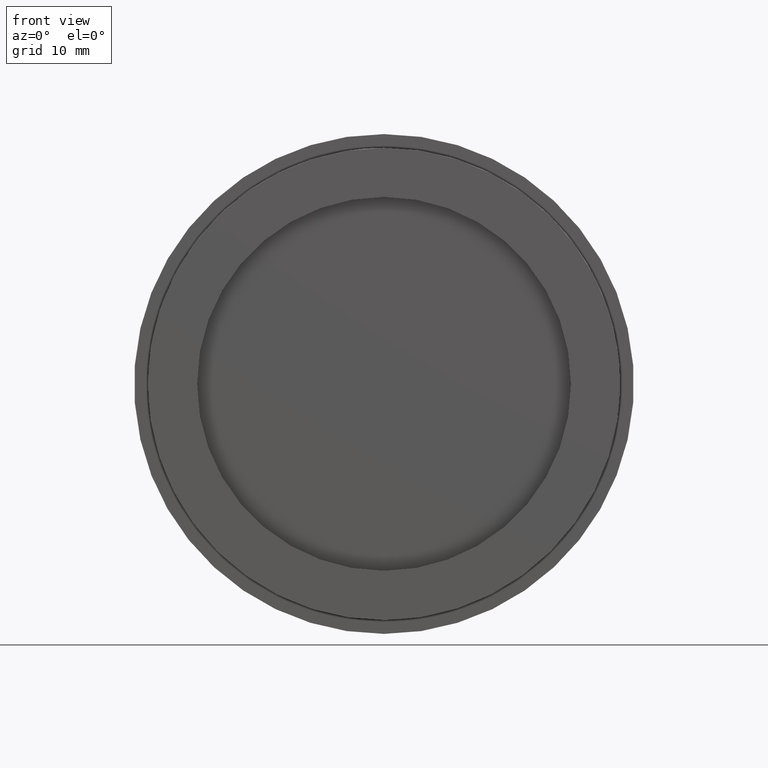
[diagram: clean part render]
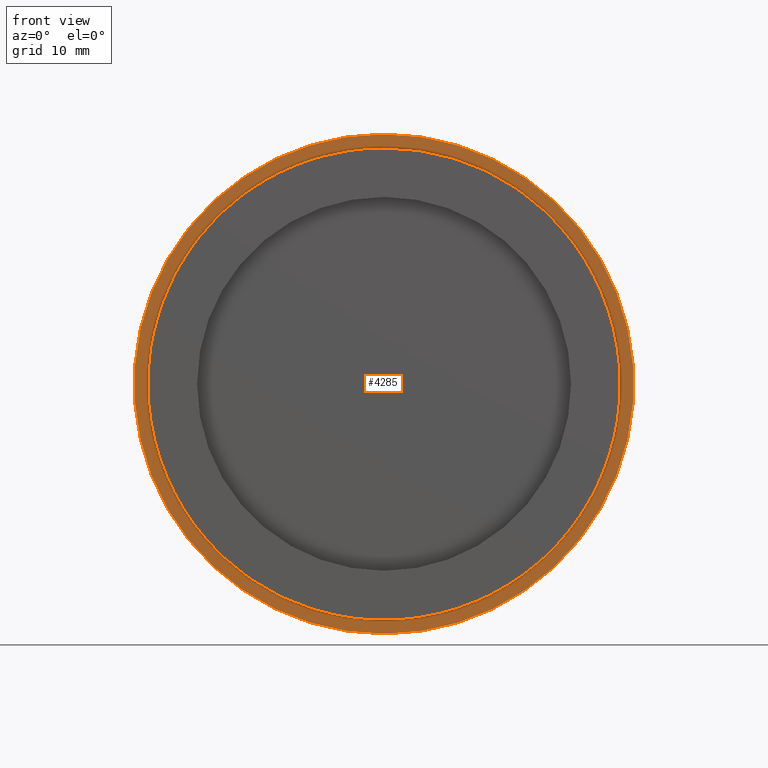
[diagram: same view with one face highlighted and labeled with its STEP entity id]
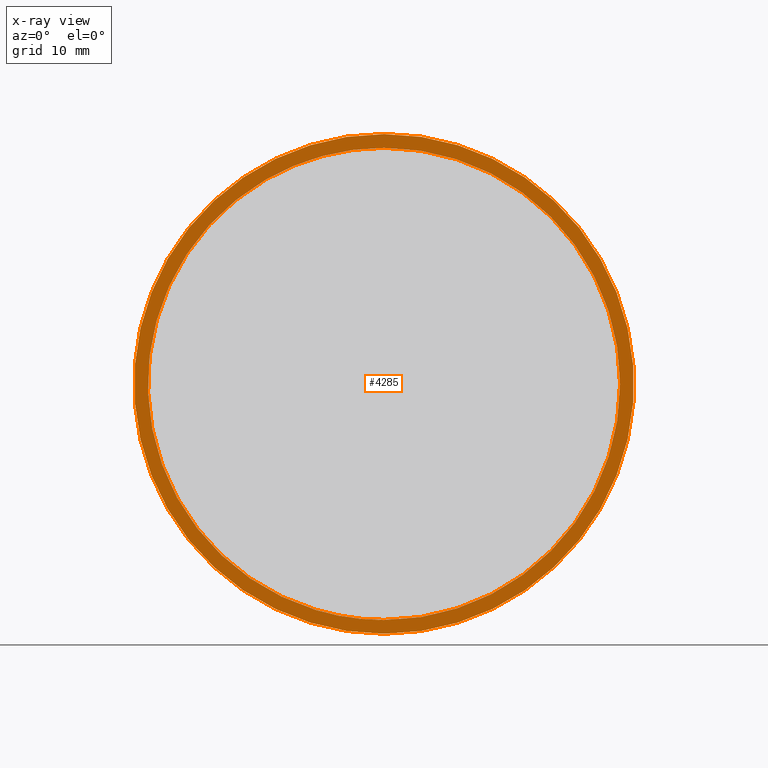
[diagram: x-ray of the same camera — body ghosted, the highlighted face saturated]
A machine part, front view. The second image highlights one B-rep face of the part: STEP entity #4285.
The next image is the same camera in x-ray: the body ghosted, the highlighted face saturated — about 0% of this face is hidden behind the body in this view.
In plain terms, the highlighted planar face has unit normal (0, -1, -0).
Its self-contained STEP definition (entity closure, byte-faithful):
#30 = EDGE_CURVE ( 'NONE', #2311, #942, #2241, .T. ) ;
#148 = ORIENTED_EDGE ( 'NONE', *, *, #5697, .F. ) ;
#274 = DIRECTION ( 'NONE',  ( 0.000000000000000000, 0.000000000000000000, -1.000000000000000000 ) ) ;
#390 = CIRCLE ( 'NONE', #1812, 24.00000000000000000 ) ;
#534 = FACE_BOUND ( 'NONE', #2293, .T. ) ;
#545 = DIRECTION ( 'NONE',  ( -0.000000000000000000, -1.000000000000000000, -0.000000000000000000 ) ) ;
#550 = EDGE_LOOP ( 'NONE', ( #1476, #1829 ) ) ;
#563 = FACE_OUTER_BOUND ( 'NONE', #550, .T. ) ;
#919 = AXIS2_PLACEMENT_3D ( 'NONE', #1073, #5526, #1579 ) ;
#942 = VERTEX_POINT ( 'NONE', #2294 ) ;
#1073 = CARTESIAN_POINT ( 'NONE',  ( 0.000000000000000000, 4.999999999999997335, 0.000000000000000000 ) ) ;
#1078 = EDGE_CURVE ( 'NONE', #2888, #2311, #4790, .T. ) ;
#1093 = CIRCLE ( 'NONE', #1909, 25.39999999999999858 ) ;
#1129 = DIRECTION ( 'NONE',  ( 0.000000000000000000, 0.000000000000000000, -1.000000000000000000 ) ) ;
#1165 = DIRECTION ( 'NONE',  ( -0.000000000000000000, -1.000000000000000000, -0.000000000000000000 ) ) ;
#1248 = CARTESIAN_POINT ( 'NONE',  ( 0.000000000000000000, 4.999999999999997335, 0.000000000000000000 ) ) ;
#1445 = ORIENTED_EDGE ( 'NONE', *, *, #1078, .F. ) ;
#1476 = ORIENTED_EDGE ( 'NONE', *, *, #2080, .T. ) ;
#1579 = DIRECTION ( 'NONE',  ( 0.000000000000000000, 0.000000000000000000, -1.000000000000000000 ) ) ;
#1791 = DIRECTION ( 'NONE',  ( -0.000000000000000000, -1.000000000000000000, -0.000000000000000000 ) ) ;
#1812 = AXIS2_PLACEMENT_3D ( 'NONE', #1248, #6054, #1129 ) ;
#1829 = ORIENTED_EDGE ( 'NONE', *, *, #5471, .T. ) ;
#1909 = AXIS2_PLACEMENT_3D ( 'NONE', #4664, #3633, #274 ) ;
#2018 = AXIS2_PLACEMENT_3D ( 'NONE', #3451, #545, #4453 ) ;
#2080 = EDGE_CURVE ( 'NONE', #4748, #2303, #1093, .T. ) ;
#2241 = CIRCLE ( 'NONE', #5848, 24.00000000000000000 ) ;
#2275 = CIRCLE ( 'NONE', #3605, 25.39999999999999858 ) ;
#2293 = EDGE_LOOP ( 'NONE', ( #5597, #1445, #148, #2745 ) ) ;
#2294 = CARTESIAN_POINT ( 'NONE',  ( -6.932654475811768968, 5.000000000000007105, -22.97690801476576183 ) ) ;
#2303 = VERTEX_POINT ( 'NONE', #2316 ) ;
#2311 = VERTEX_POINT ( 'NONE', #4837 ) ;
#2316 = CARTESIAN_POINT ( 'NONE',  ( 3.110602869834276865E-15, 5.000000000000000888, 25.39999999999999858 ) ) ;
#2444 = CARTESIAN_POINT ( 'NONE',  ( 24.00000000000000000, 4.999999999999999112, 0.000000000000000000 ) ) ;
#2588 = CARTESIAN_POINT ( 'NONE',  ( 2.939152317953647894E-15, 4.999999999999997335, 24.00000000000000000 ) ) ;
#2745 = ORIENTED_EDGE ( 'NONE', *, *, #4489, .F. ) ;
#2888 = VERTEX_POINT ( 'NONE', #2588 ) ;
#3451 = CARTESIAN_POINT ( 'NONE',  ( 0.000000000000000000, 4.999999999999997335, 0.000000000000000000 ) ) ;
#3558 = DIRECTION ( 'NONE',  ( 0.000000000000000000, -1.000000000000000000, -0.000000000000000000 ) ) ;
#3605 = AXIS2_PLACEMENT_3D ( 'NONE', #5052, #1165, #4963 ) ;
#3633 = DIRECTION ( 'NONE',  ( -0.000000000000000000, -1.000000000000000000, -0.000000000000000000 ) ) ;
#4143 = VERTEX_POINT ( 'NONE', #4349 ) ;
#4285 = ADVANCED_FACE ( 'NONE', ( #563, #534 ), #5437, .T. ) ;
#4349 = CARTESIAN_POINT ( 'NONE',  ( 0.000000000000000000, 4.999999999999997335, -24.00000000000000000 ) ) ;
#4453 = DIRECTION ( 'NONE',  ( 0.000000000000000000, 0.000000000000000000, -1.000000000000000000 ) ) ;
#4489 = EDGE_CURVE ( 'NONE', #942, #4143, #390, .T. ) ;
#4664 = CARTESIAN_POINT ( 'NONE',  ( 0.000000000000000000, 5.000000000000000888, 0.000000000000000000 ) ) ;
#4748 = VERTEX_POINT ( 'NONE', #4993 ) ;
#4790 = CIRCLE ( 'NONE', #2018, 24.00000000000000000 ) ;
#4837 = CARTESIAN_POINT ( 'NONE',  ( -11.99999838489546100, 4.999818409935582686, 20.78461062330748277 ) ) ;
#4963 = DIRECTION ( 'NONE',  ( 0.000000000000000000, 0.000000000000000000, -1.000000000000000000 ) ) ;
#4993 = CARTESIAN_POINT ( 'NONE',  ( 0.000000000000000000, 5.000000000000000888, -25.39999999999999858 ) ) ;
#5052 = CARTESIAN_POINT ( 'NONE',  ( 0.000000000000000000, 5.000000000000000888, 0.000000000000000000 ) ) ;
#5266 = CIRCLE ( 'NONE', #919, 24.00000000000000000 ) ;
#5437 = PLANE ( 'NONE',  #5914 ) ;
#5471 = EDGE_CURVE ( 'NONE', #2303, #4748, #2275, .T. ) ;
#5526 = DIRECTION ( 'NONE',  ( -0.000000000000000000, -1.000000000000000000, -0.000000000000000000 ) ) ;
#5597 = ORIENTED_EDGE ( 'NONE', *, *, #30, .F. ) ;
#5697 = EDGE_CURVE ( 'NONE', #4143, #2888, #5266, .T. ) ;
#5747 = CARTESIAN_POINT ( 'NONE',  ( 0.000000000000000000, 4.999999999999997335, 0.000000000000000000 ) ) ;
#5848 = AXIS2_PLACEMENT_3D ( 'NONE', #5747, #1791, #6249 ) ;
#5914 = AXIS2_PLACEMENT_3D ( 'NONE', #2444, #3558, #5941 ) ;
#5941 = DIRECTION ( 'NONE',  ( 0.000000000000000000, 0.000000000000000000, -1.000000000000000000 ) ) ;
#6054 = DIRECTION ( 'NONE',  ( -0.000000000000000000, -1.000000000000000000, -0.000000000000000000 ) ) ;
#6249 = DIRECTION ( 'NONE',  ( 0.000000000000000000, 0.000000000000000000, -1.000000000000000000 ) ) ;